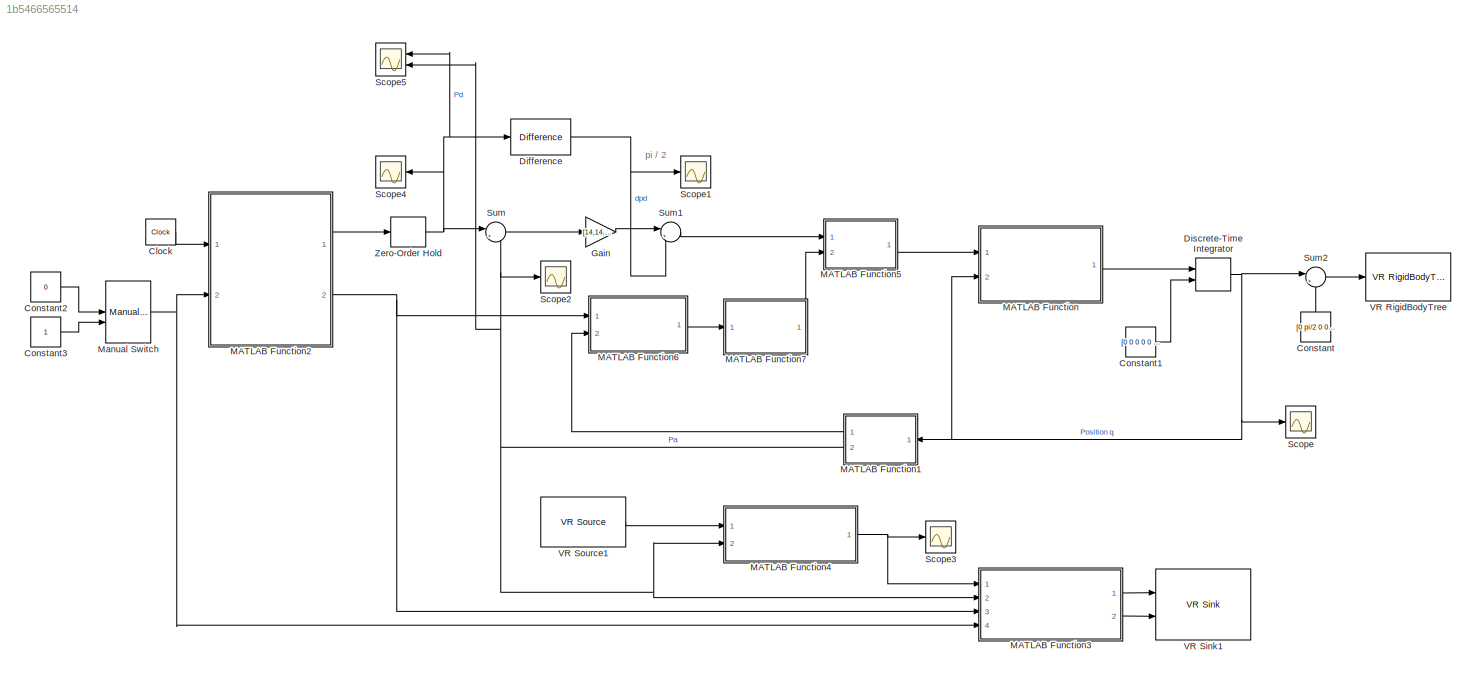
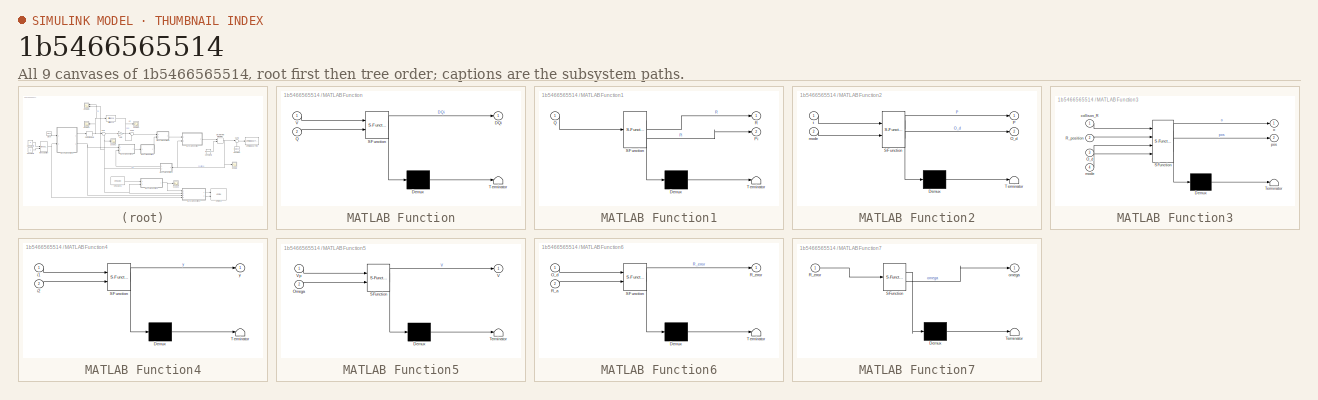
[diagram: thumbnail index - all 9 canvases of the model, root first then tree order]
MODEL slx_1b5466565514
KIND model
CONFIG AbsTol = auto
CONFIG EnableMultiTasking = off
CONFIG FixedStep = auto
CONFIG MaxStep = auto
CONFIG MinStep = auto
CONFIG RelTol = 1e-3
CONFIG SampleTimeConstraint = Unconstrained
CONFIG SolverName = VariableStepAuto
CONFIG StartTime = 0.0
CONFIG StopTime = 37
BLOCK [Clock] Clock
  Decimation = 1
  DisplayTime = on
BLOCK [Constant] Constant
  NameLocation = right
  Value = [0 pi/2 0 0 0 0]'
BLOCK [Constant] Constant1
  Value = [0 0 0 0 0 0]'
BLOCK [Constant] Constant2
  Value = 0
BLOCK [Constant] Constant3
BLOCK [Reference] Difference  REF=simulink/Discrete/Difference
  Ports = [1, 1]
  SourceBlock = simulink/Discrete/Difference
  SourceProductBaseCode = SL
  SourceType = Difference
BLOCK [DiscreteIntegrator] Discrete-Time Integrator
  ICPrevOutput = DiscIntNeverNeededParam
  ICPrevScaledInput = DiscIntNeverNeededParam
  InitialConditionSetting = Auto
  InitialConditionSource = external
  OutMin = [2]
  Ports = [2, 1]
  SampleTime = -1
BLOCK [Gain] Gain
  Gain = [14,14,25].'
BLOCK [SubSystem] MATLAB Function
  ErrorFcn = Stateflow.Translate.translate
  PermitHierarchicalResolution = ExplicitOnly
  Ports = [2, 1]
  RequestExecContextInheritance = off
  SFBlockType = MATLAB Function
  TreatAsAtomicUnit = on
BLOCK [Demux] MATLAB Function/ Demux 
  Outputs = 1
  Ports = [1, 1]
BLOCK [S-Function] MATLAB Function/ SFunction 
  EnableBusSupport = on
  FunctionName = sf_sfun
  PortCounts = [2 2]
  Ports = [2, 2]
  SFcnIsStateOwnerBlock = off
  SFunctionDeploymentMode = off
  Tag = Stateflow S-Function 2
BLOCK [Terminator] MATLAB Function/ Terminator 
BLOCK [Outport] MATLAB Function/DQi
BLOCK [Inport] MATLAB Function/Q
  Port = 2
BLOCK [Inport] MATLAB Function/V
BLOCK [SubSystem] MATLAB Function1
  ErrorFcn = Stateflow.Translate.translate
  PermitHierarchicalResolution = ExplicitOnly
  Ports = [1, 2]
  RequestExecContextInheritance = off
  SFBlockType = MATLAB Function
  TreatAsAtomicUnit = on
BLOCK [Demux] MATLAB Function1/ Demux 
  Outputs = 1
  Ports = [1, 1]
BLOCK [S-Function] MATLAB Function1/ SFunction 
  EnableBusSupport = on
  FunctionName = sf_sfun
  PortCounts = [1 3]
  Ports = [1, 3]
  SFcnIsStateOwnerBlock = off
  SFunctionDeploymentMode = off
  Tag = Stateflow S-Function 1
BLOCK [Terminator] MATLAB Function1/ Terminator 
BLOCK [Outport] MATLAB Function1/Pi
  Port = 2
BLOCK [Inport] MATLAB Function1/Q
BLOCK [Outport] MATLAB Function1/R
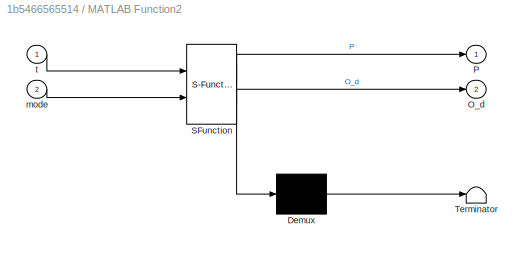
BLOCK [SubSystem] MATLAB Function2
  ErrorFcn = Stateflow.Translate.translate
  PermitHierarchicalResolution = ExplicitOnly
  Ports = [2, 2]
  RequestExecContextInheritance = off
  SFBlockType = MATLAB Function
  TreatAsAtomicUnit = on
BLOCK [Demux] MATLAB Function2/ Demux 
  Outputs = 1
  Ports = [1, 1]
BLOCK [S-Function] MATLAB Function2/ SFunction 
  EnableBusSupport = on
  FunctionName = sf_sfun
  PortCounts = [2 3]
  Ports = [2, 3]
  SFcnIsStateOwnerBlock = off
  SFunctionDeploymentMode = off
  Tag = Stateflow S-Function 3
BLOCK [Terminator] MATLAB Function2/ Terminator 
BLOCK [Outport] MATLAB Function2/O_d
  Port = 2
BLOCK [Outport] MATLAB Function2/P
BLOCK [Inport] MATLAB Function2/mode
  Port = 2
BLOCK [Inport] MATLAB Function2/t
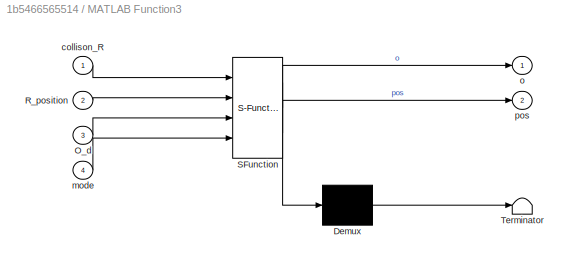
BLOCK [SubSystem] MATLAB Function3
  ErrorFcn = Stateflow.Translate.translate
  PermitHierarchicalResolution = ExplicitOnly
  Ports = [4, 2]
  RequestExecContextInheritance = off
  SFBlockType = MATLAB Function
  TreatAsAtomicUnit = on
BLOCK [Demux] MATLAB Function3/ Demux 
  Outputs = 1
  Ports = [1, 1]
BLOCK [S-Function] MATLAB Function3/ SFunction 
  EnableBusSupport = on
  FunctionName = sf_sfun
  PortCounts = [4 3]
  Ports = [4, 3]
  SFcnIsStateOwnerBlock = off
  SFunctionDeploymentMode = off
  Tag = Stateflow S-Function 4
BLOCK [Terminator] MATLAB Function3/ Terminator 
BLOCK [Inport] MATLAB Function3/O_d
  Port = 3
BLOCK [Inport] MATLAB Function3/R_position
  Port = 2
BLOCK [Inport] MATLAB Function3/collison_R
BLOCK [Inport] MATLAB Function3/mode
  Port = 4
BLOCK [Outport] MATLAB Function3/o
BLOCK [Outport] MATLAB Function3/pos
  Port = 2
BLOCK [SubSystem] MATLAB Function4
  ErrorFcn = Stateflow.Translate.translate
  PermitHierarchicalResolution = ExplicitOnly
  Ports = [2, 1]
  RequestExecContextInheritance = off
  SFBlockType = MATLAB Function
  TreatAsAtomicUnit = on
BLOCK [Demux] MATLAB Function4/ Demux 
  Outputs = 1
  Ports = [1, 1]
BLOCK [S-Function] MATLAB Function4/ SFunction 
  EnableBusSupport = on
  FunctionName = sf_sfun
  PortCounts = [2 2]
  Ports = [2, 2]
  SFcnIsStateOwnerBlock = off
  SFunctionDeploymentMode = off
  Tag = Stateflow S-Function 5
BLOCK [Terminator] MATLAB Function4/ Terminator 
BLOCK [Inport] MATLAB Function4/i1
BLOCK [Inport] MATLAB Function4/i2
  Port = 2
BLOCK [Outport] MATLAB Function4/y
BLOCK [SubSystem] MATLAB Function5
  ErrorFcn = Stateflow.Translate.translate
  PermitHierarchicalResolution = ExplicitOnly
  Ports = [2, 1]
  RequestExecContextInheritance = off
  SFBlockType = MATLAB Function
  TreatAsAtomicUnit = on
BLOCK [Demux] MATLAB Function5/ Demux 
  Outputs = 1
  Ports = [1, 1]
BLOCK [S-Function] MATLAB Function5/ SFunction 
  EnableBusSupport = on
  FunctionName = sf_sfun
  PortCounts = [2 2]
  Ports = [2, 2]
  SFcnIsStateOwnerBlock = off
  SFunctionDeploymentMode = off
  Tag = Stateflow S-Function 6
BLOCK [Terminator] MATLAB Function5/ Terminator 
BLOCK [Inport] MATLAB Function5/Omega
  Port = 2
BLOCK [Outport] MATLAB Function5/V
BLOCK [Inport] MATLAB Function5/Vp
BLOCK [SubSystem] MATLAB Function6
  ErrorFcn = Stateflow.Translate.translate
  PermitHierarchicalResolution = ExplicitOnly
  Ports = [2, 1]
  RequestExecContextInheritance = off
  SFBlockType = MATLAB Function
  TreatAsAtomicUnit = on
BLOCK [Demux] MATLAB Function6/ Demux 
  Outputs = 1
  Ports = [1, 1]
BLOCK [S-Function] MATLAB Function6/ SFunction 
  EnableBusSupport = on
  FunctionName = sf_sfun
  PortCounts = [2 2]
  Ports = [2, 2]
  SFcnIsStateOwnerBlock = off
  SFunctionDeploymentMode = off
  Tag = Stateflow S-Function 7
BLOCK [Terminator] MATLAB Function6/ Terminator 
BLOCK [Inport] MATLAB Function6/O_d
BLOCK [Inport] MATLAB Function6/R_a
  Port = 2
BLOCK [Outport] MATLAB Function6/R_error
BLOCK [SubSystem] MATLAB Function7
  ErrorFcn = Stateflow.Translate.translate
  PermitHierarchicalResolution = ExplicitOnly
  Ports = [1, 1]
  RequestExecContextInheritance = off
  SFBlockType = MATLAB Function
  TreatAsAtomicUnit = on
BLOCK [Demux] MATLAB Function7/ Demux 
  Outputs = 1
  Ports = [1, 1]
BLOCK [S-Function] MATLAB Function7/ SFunction 
  EnableBusSupport = on
  FunctionName = sf_sfun
  PortCounts = [1 2]
  Ports = [1, 2]
  SFcnIsStateOwnerBlock = off
  SFunctionDeploymentMode = off
  Tag = Stateflow S-Function 8
BLOCK [Terminator] MATLAB Function7/ Terminator 
BLOCK [Inport] MATLAB Function7/R_error
BLOCK [Outport] MATLAB Function7/omega
BLOCK [ManualSwitch] Manual Switch
  CurrentSetting = 0
BLOCK [Scope] Scope
  Floating = off
  NumInputPorts = 1
  Ports = [1]
  ScopeSpecificationString = Simulink.scopes.TimeScopeBlockCfg('CurrentConfiguration', extmgr.ConfigurationSet(extmgr.Configuration('Core','General UI',true,'FigureColor',[1 1 1]),extmgr.Configuration('Core','Source UI',true),extmgr.Configuration('Sources','WiredSimulink',true,'DataLoggingVariableName','ScopeData1'),extmgr.Configuration('Visuals','Time Domain',true,'SerializedDisplays',{struct('MinYLimReal','-11.81433','MaxYL...<+2300ch>
BLOCK [Scope] Scope1
  Floating = off
  NumInputPorts = 1
  Ports = [1]
  ScopeSpecificationString = Simulink.scopes.TimeScopeBlockCfg('CurrentConfiguration', extmgr.ConfigurationSet(extmgr.Configuration('Core','General UI',true,'FigureColor',[1 1 1]),extmgr.Configuration('Core','Source UI',true),extmgr.Configuration('Sources','WiredSimulink',true,'DataLoggingVariableName','ScopeData2'),extmgr.Configuration('Visuals','Time Domain',true,'SerializedDisplays',{struct('MinYLimReal','-0.01315','MaxYLi...<+1829ch>
BLOCK [Scope] Scope2
  Floating = off
  NumInputPorts = 1
  Ports = [1]
  ScopeSpecificationString = Simulink.scopes.TimeScopeBlockCfg('CurrentConfiguration', extmgr.ConfigurationSet(extmgr.Configuration('Core','General UI',true,'FigureColor',[1 1 1]),extmgr.Configuration('Core','Source UI',true),extmgr.Configuration('Sources','WiredSimulink',true),extmgr.Configuration('Visuals','Time Domain',true,'SerializedDisplays',{struct('MinYLimReal','-0.6325','MaxYLimReal','1.19253','YLabelReal','','MinYLi...<+1862ch>
BLOCK [Scope] Scope3
  Floating = off
  NumInputPorts = 1
  Ports = [1]
  ScopeSpecificationString = Simulink.scopes.TimeScopeBlockCfg('CurrentConfiguration', extmgr.ConfigurationSet(extmgr.Configuration('Core','General UI',true),extmgr.Configuration('Core','Source UI',true),extmgr.Configuration('Sources','WiredSimulink',true,'DataLoggingVariableName','ScopeData1'),extmgr.Configuration('Visuals','Time Domain',true,'SerializedDisplays',{struct('MinYLimReal','-3.38978','MaxYLimReal','3.23827','YLab...<+1569ch>
BLOCK [Scope] Scope4
  Floating = off
  NumInputPorts = 1
  Ports = [1]
  ScopeSpecificationString = Simulink.scopes.TimeScopeBlockCfg('CurrentConfiguration', extmgr.ConfigurationSet(extmgr.Configuration('Core','General UI',true,'FigureColor',[1 1 1]),extmgr.Configuration('Core','Source UI',true),extmgr.Configuration('Sources','WiredSimulink',true,'DataLoggingVariableName','ScopeData1'),extmgr.Configuration('Visuals','Time Domain',true,'SerializedDisplays',{struct('MinYLimReal','-0.6325','MaxYLim...<+1817ch>
BLOCK [Scope] Scope5
  Floating = off
  NumInputPorts = 2
  Ports = [2]
  ScopeSpecificationString = Simulink.scopes.TimeScopeBlockCfg('CurrentConfiguration', extmgr.ConfigurationSet(extmgr.Configuration('Core','General UI',true,'FigureColor',[1 1 1]),extmgr.Configuration('Core','Source UI',true),extmgr.Configuration('Sources','WiredSimulink',true,'DataLoggingVariableName','ScopeData1'),extmgr.Configuration('Visuals','Time Domain',true,'SerializedDisplays',{struct('MinYLimReal','-0.6325','MaxYLim...<+1842ch>
BLOCK [Sum] Sum
  Inputs = |+-
  NameLocation = top
  Ports = [2, 1]
BLOCK [Sum] Sum1
  Inputs = |++
  NameLocation = top
  Ports = [2, 1]
BLOCK [Sum] Sum2
  Inputs = |++
  NameLocation = top
  Ports = [2, 1]
BLOCK [Reference] VR RigidBodyTree  REF=vrlib/VR RigidBodyTree
  Ports = [1]
  SourceBlock = vrlib/VR RigidBodyTree
  SourceProductBaseCode = SL
  SourceType = VR RigidBodyTree
BLOCK [Reference] VR Sink1  REF=vrlib/VR Sink
  InstantiateOnLoad = on
  NameLocation = top
  Ports = [2]
  SourceBlock = vrlib/VR Sink
  SourceProductBaseCode = SL
  SourceType = Virtual Reality Sink
BLOCK [Reference] VR Source1  REF=vrlib/VR Source
  InstantiateOnLoad = on
  Ports = [0, 1]
  SourceBlock = vrlib/VR Source
  SourceProductBaseCode = SL
  SourceType = Virtual Reality Source
BLOCK [ZeroOrderHold] Zero-Order Hold
  SampleTime = 0.05
ANNOTATION (root): pi / 2
LINE Clock:1 -> MATLAB Function2:1
LINE Constant1:1 -> Discrete-Time Integrator:2
LINE Constant2:1 -> Manual Switch:1
LINE Constant3:1 -> Manual Switch:2
LINE Constant:1 -> Sum2:2
NET Difference:1 -> Scope1:1, Sum1:2
NET Discrete-Time Integrator:1 -> MATLAB Function1:1, MATLAB Function:2, Scope:1, Sum2:1
LINE Gain:1 -> Sum1:1
LINE MATLAB Function1:1 -> MATLAB Function6:2
NET MATLAB Function1:2 -> MATLAB Function3:2, MATLAB Function4:2, Scope2:1, Scope5:2, Sum:2
LINE MATLAB Function2:1 -> Zero-Order Hold:1
NET MATLAB Function2:2 -> MATLAB Function3:3, MATLAB Function6:1
LINE MATLAB Function3:1 -> VR Sink1:1
LINE MATLAB Function3:2 -> VR Sink1:2
NET MATLAB Function4:1 -> MATLAB Function3:1, Scope3:1
LINE MATLAB Function5:1 -> MATLAB Function:1
LINE MATLAB Function6:1 -> MATLAB Function7:1
LINE MATLAB Function7:1 -> MATLAB Function5:2
LINE MATLAB Function:1 -> Discrete-Time Integrator:1
NET Manual Switch:1 -> MATLAB Function2:2, MATLAB Function3:4
LINE Sum1:1 -> MATLAB Function5:1
LINE Sum2:1 -> VR RigidBodyTree:1
LINE Sum:1 -> Gain:1
LINE VR Source1:1 -> MATLAB Function4:1
NET Zero-Order Hold:1 -> Difference:1, Scope4:1, Scope5:1, Sum:1
note: NET lines group one-source signal fan-out (src -> all destinations, sorted); 1:1 wires keep LINE
CHART MATLAB Function1 states=1 transitions=1
  STATE_LABEL 'eML_blk_kernel()'
  STATE_LABEL 'SCRIPT:\nfunction [R,Pi] = posa(Q)\n\nth1 = Q(1);\nth2 = Q(2);\nth3 = Q(3);\nth4 = Q(4);\nth5 = Q(5);\nth6 = Q(6);\n\n% Matrice di trasformazione 4x4 calcolata nella posizione Q\nT = [\n    [sin(th6)*(cos(th4)*sin(th1) + sin(th4)*(cos(th1)*sin(th3)*sin(th2 + pi/2) - cos(th1)*cos(th3)*cos(th2 + pi/2))) + cos(th6)*(cos(th5)*(sin(th1)*sin(th4) - cos(th4)*(cos(th1)*sin(th3)*sin(th2 + pi/2) - cos(th1)*cos(th3)*cos...<+3415ch>'
CHART MATLAB Function states=1 transitions=1
  STATE_LABEL 'eML_blk_kernel()'
  STATE_LABEL 'SCRIPT:\nfunction DQi = inverseKinematic(V,Q)\n\nth1 = Q(1);\nth2 = Q(2);\nth3 = Q(3);\nth4 = Q(4);\nth5 = Q(5);\nth6 = Q(6);\n\n\n% cosiderando sia le traslazioni che le orientazioni viene utilizzato il seguente J che si riferisce al jacobiano completo J = Jp + Jo \nJ = [\n[(9*sin(th5)*(cos(th1)*sin(th4) - cos(th4)*(cos(th3)*cos(th2 + pi/2)*sin(th1) - sin(th1)*sin(th3)*sin(th2 + pi/2))))/50 - (17*cos(th2 + pi...<+3608ch>'
CHART MATLAB Function2 states=1 transitions=1
  STATE_LABEL 'eML_blk_kernel()'
  STATE_LABEL "SCRIPT:\nfunction [P,O_d] = trapezioPlanner(t,mode)\n    % Parametri per la traiettoria\n    % Tempo di pianificazione\n    % ogni tappa è definita come: \n    % struct('Pi', [Posizione inizale end effector], 'Pf', [posizione\n    % finale end effector], 'tf', [durata della tappa], 'tw',[tempo di attesa a fine tappa],'O',[orientazione end effector]),\n    %\n    %struct('Pi', [X ; Y; Z], 'Pf', [X ; Y; Z],...<+3608ch>"
CHART MATLAB Function3 states=1 transitions=1
  STATE_LABEL 'eML_blk_kernel()'
  STATE_LABEL "SCRIPT:\nfunction [o,pos] = posa_spina(collison_R,R_position,O_d,mode)\n     \n     \n     \n     psi = O_d(3); % Rotazione attorno all'asse Z dell'end effector (Asse che punta verso il pezzo da agganciare)\n\n     pos = [0.60; 0.7; 0.4];\n     o = [0 0 0 0];\n\n     \n     \n     % Viene utilizzata la matrice di rotazione R_robot_to_scene per\n     % traformare la posizione del dell'end effector riferita alla...<+1828ch>"
CHART MATLAB Function4 states=1 transitions=1
  STATE_LABEL 'eML_blk_kernel()'
  STATE_LABEL 'SCRIPT:\nfunction y  = collision_detection(i1, i2)\n   % Trasformazione dal frame della scena al frame del robot\n   R_scene_to_robot = [1,  0,  0;     % x_s -> x_r\n                       0,  0, -1;     % z_s -> -y_r\n                       0, 1,   0];    % y_s -> z_r\n\n   % Applicazione della trasformazione a i1\n   i1_robot = R_scene_to_robot * i1;\n\n   % Coordinate di i1 nel frame del robot\n\n   xi1 = ...<+396ch>'
CHART MATLAB Function5 states=1 transitions=1
  STATE_LABEL 'eML_blk_kernel()'
  STATE_LABEL 'SCRIPT:\nfunction V = fcn(Vp,Omega)\n% Questa funzione a partire dalle velocità delle Velocità Vp e le\n% orientazioni creo il vettore V [6x1]\nV = [Vp;Omega];\n'
CHART MATLAB Function6 states=1 transitions=1
  STATE_LABEL 'eML_blk_kernel()'
  STATE_LABEL "SCRIPT:\nfunction R_error = Orientation(O_d,R_a)\n% R_a, è la matrice di rotazione ottenuta dalla posa in retroazione \n\n%R_iniziale, questa matrice è la matrice iniziale (orientazione assoluta) \n%che permette di riferire gli angoli di eulero alla orientazione relativa dell'end effector\n\nR_iniziale = [\n    0.0000    0.0000    1.0000 ;\n    1.0000         0    0.0000 ;\n         0    1.0000    0.0000 ];...<+1032ch>"
CHART MATLAB Function7 states=1 transitions=1
  STATE_LABEL 'eML_blk_kernel()'
  STATE_LABEL "SCRIPT:\n function omega = calcOmegaError(R_error)\n    % Calcola la matrice di errore\n\n    % Calcola theta\n    theta = acos((trace(R_error) - 1) / 2);\n\n    % Calcola matrice antisimmetrica u_hat\n    if abs(theta) < 1e-6  % Evita divisioni per zero\n        omega = [0;0;0];\n    else\n        skew_matrix = (R_error - R_error')/(2*sin(theta));  % Caso limite (errore molto piccolo)\n        omega = [skew_...<+119ch>"
CHART  states=0 transitions=0
CHART  states=0 transitions=0
CHART  states=0 transitions=0
CHART  states=0 transitions=0
CHART  states=0 transitions=0
CHART  states=0 transitions=0
CHART  states=0 transitions=0
CHART  states=0 transitions=0
